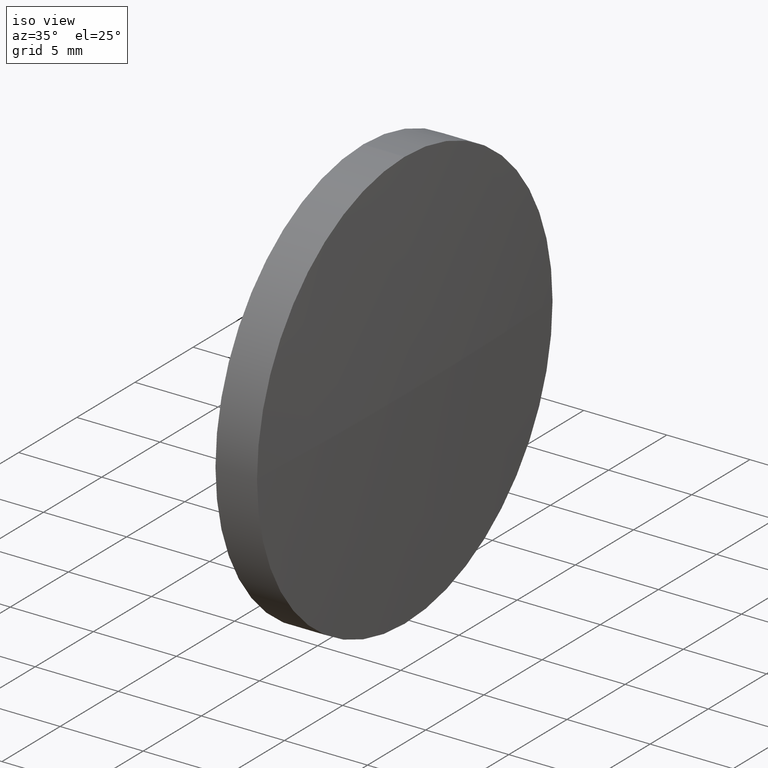
[diagram: clean part render]
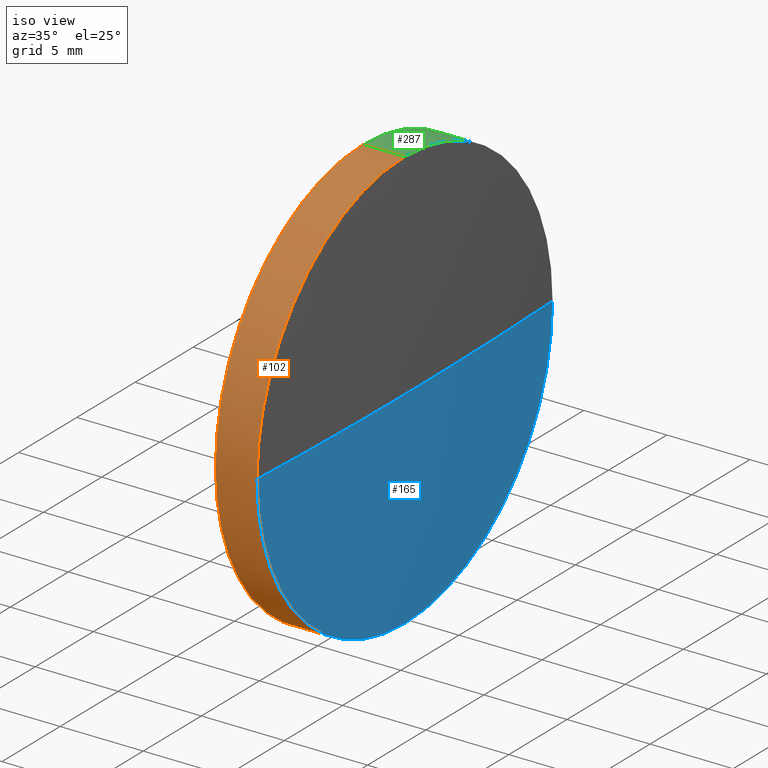
[diagram: same view with three faces highlighted in distinct colors, each labeled with its STEP entity id]
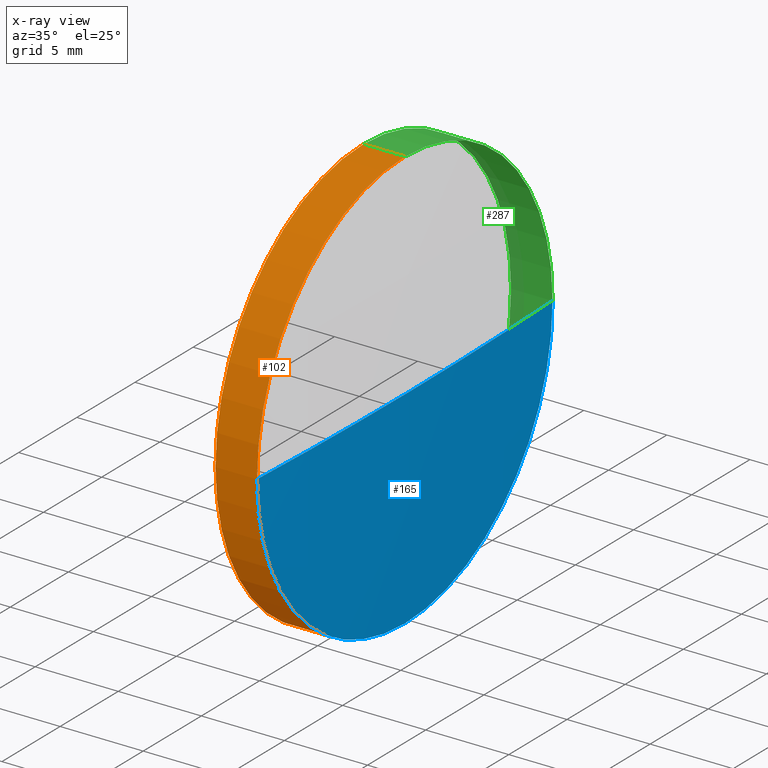
[diagram: x-ray of the same camera — body ghosted, the three highlighted faces saturated]
A machine part, iso view with three faces highlighted in distinct colors.
The next image is the same camera in x-ray (body ghosted, the three faces saturated) — at least one of them is partly hidden behind the body in this view.
Their STEP definitions:

[orange] entity #102 — the highlighted cylindrical surface (partial cylindrical patch) has radius 12.7 mm, axis along (-1, -0, -0).
#7 = VERTEX_POINT ( 'NONE', #86 ) ;
#10 = CARTESIAN_POINT ( 'NONE',  ( 85.20819446037681600, 48.61611302318478100, 0.0000000000000000000 ) ) ;
#17 = ORIENTED_EDGE ( 'NONE', *, *, #55, .T. ) ;
#25 = EDGE_CURVE ( 'NONE', #301, #7, #75, .T. ) ;
#31 = CARTESIAN_POINT ( 'NONE',  ( 85.20819446037681600, 48.61611302318478100, 0.0000000000000000000 ) ) ;
#41 = CIRCLE ( 'NONE', #137, 12.69999999999999600 ) ;
#42 = EDGE_CURVE ( 'NONE', #7, #178, #262, .T. ) ;
#46 = EDGE_CURVE ( 'NONE', #306, #162, #286, .T. ) ;
#52 = EDGE_LOOP ( 'NONE', ( #175, #17, #184, #226, #79, #318 ) ) ;
#54 = DIRECTION ( 'NONE',  ( 0.0000000000000000000, 0.0000000000000000000, 1.000000000000000000 ) ) ;
#55 = EDGE_CURVE ( 'NONE', #301, #235, #108, .T. ) ;
#71 = CARTESIAN_POINT ( 'NONE',  ( 87.70819308894824900, 48.61611302318478100, -12.69999999999999600 ) ) ;
#75 = LINE ( 'NONE', #88, #187 ) ;
#79 = ORIENTED_EDGE ( 'NONE', *, *, #92, .F. ) ;
#81 = DIRECTION ( 'NONE',  ( -1.000000000000000000, -0.0000000000000000000, -0.0000000000000000000 ) ) ;
#86 = CARTESIAN_POINT ( 'NONE',  ( 85.20819446037681600, 48.61611302318478100, -12.69999999999999600 ) ) ;
#88 = CARTESIAN_POINT ( 'NONE',  ( 83.37198105152673100, 48.61611302318478100, -12.69999999999999600 ) ) ;
#89 = CYLINDRICAL_SURFACE ( 'NONE', #211, 12.69999999999999600 ) ;
#92 = EDGE_CURVE ( 'NONE', #178, #162, #41, .T. ) ;
#102 = ADVANCED_FACE ( 'NONE', ( #121 ), #89, .T. ) ;
#108 = CIRCLE ( 'NONE', #311, 12.69999999999999600 ) ;
#115 = CARTESIAN_POINT ( 'NONE',  ( 87.70819308894824900, 48.61611302318478100, 0.0000000000000000000 ) ) ;
#121 = FACE_OUTER_BOUND ( 'NONE', #52, .T. ) ;
#127 = CARTESIAN_POINT ( 'NONE',  ( 87.70819308894824900, 48.61611302318478100, 12.69999999999999600 ) ) ;
#137 = AXIS2_PLACEMENT_3D ( 'NONE', #31, #224, #310 ) ;
#162 = VERTEX_POINT ( 'NONE', #289 ) ;
#168 = CARTESIAN_POINT ( 'NONE',  ( 83.37198105152673100, 48.61611302318478100, 0.0000000000000000000 ) ) ;
#174 = DIRECTION ( 'NONE',  ( -1.000000000000000000, -0.0000000000000000000, -0.0000000000000000000 ) ) ;
#175 = ORIENTED_EDGE ( 'NONE', *, *, #25, .F. ) ;
#176 = EDGE_CURVE ( 'NONE', #235, #306, #315, .T. ) ;
#178 = VERTEX_POINT ( 'NONE', #204 ) ;
#184 = ORIENTED_EDGE ( 'NONE', *, *, #176, .T. ) ;
#187 = VECTOR ( 'NONE', #284, 1000.000000000000000 ) ;
#196 = AXIS2_PLACEMENT_3D ( 'NONE', #115, #174, #342 ) ;
#199 = DIRECTION ( 'NONE',  ( 0.0000000000000000000, 0.0000000000000000000, 1.000000000000000000 ) ) ;
#204 = CARTESIAN_POINT ( 'NONE',  ( 85.20819446037680200, 35.91611302318423100, -1.555301434917111200E-015 ) ) ;
#211 = AXIS2_PLACEMENT_3D ( 'NONE', #168, #252, #332 ) ;
#224 = DIRECTION ( 'NONE',  ( -1.000000000000000000, -0.0000000000000000000, -0.0000000000000000000 ) ) ;
#226 = ORIENTED_EDGE ( 'NONE', *, *, #46, .T. ) ;
#235 = VERTEX_POINT ( 'NONE', #261 ) ;
#252 = DIRECTION ( 'NONE',  ( -1.000000000000000000, -0.0000000000000000000, -0.0000000000000000000 ) ) ;
#261 = CARTESIAN_POINT ( 'NONE',  ( 87.70819308894824900, 35.91611302318488400, -1.555301434917123000E-015 ) ) ;
#262 = CIRCLE ( 'NONE', #314, 12.69999999999999600 ) ;
#281 = DIRECTION ( 'NONE',  ( -1.000000000000000000, -0.0000000000000000000, -0.0000000000000000000 ) ) ;
#283 = CARTESIAN_POINT ( 'NONE',  ( 83.37198105152673100, 48.61611302318478100, 12.69999999999999600 ) ) ;
#284 = DIRECTION ( 'NONE',  ( -1.000000000000000000, -0.0000000000000000000, -0.0000000000000000000 ) ) ;
#285 = CARTESIAN_POINT ( 'NONE',  ( 87.70819308894824900, 48.61611302318478100, 0.0000000000000000000 ) ) ;
#286 = LINE ( 'NONE', #283, #343 ) ;
#289 = CARTESIAN_POINT ( 'NONE',  ( 85.20819446037681600, 48.61611302318478100, 12.69999999999999600 ) ) ;
#301 = VERTEX_POINT ( 'NONE', #71 ) ;
#304 = DIRECTION ( 'NONE',  ( -1.000000000000000000, -0.0000000000000000000, -0.0000000000000000000 ) ) ;
#306 = VERTEX_POINT ( 'NONE', #127 ) ;
#310 = DIRECTION ( 'NONE',  ( 0.0000000000000000000, 0.0000000000000000000, 1.000000000000000000 ) ) ;
#311 = AXIS2_PLACEMENT_3D ( 'NONE', #285, #281, #199 ) ;
#314 = AXIS2_PLACEMENT_3D ( 'NONE', #10, #304, #54 ) ;
#315 = CIRCLE ( 'NONE', #196, 12.69999999999999600 ) ;
#318 = ORIENTED_EDGE ( 'NONE', *, *, #42, .F. ) ;
#332 = DIRECTION ( 'NONE',  ( 0.0000000000000000000, 0.0000000000000000000, 1.000000000000000000 ) ) ;
#342 = DIRECTION ( 'NONE',  ( 0.0000000000000000000, 0.0000000000000000000, 1.000000000000000000 ) ) ;
#343 = VECTOR ( 'NONE', #81, 1000.000000000000000 ) ;

[blue] entity #165 — the highlighted spherical surface has radius 273.559 mm.
#6 = EDGE_CURVE ( 'NONE', #74, #83, #142, .T. ) ;
#12 = DIRECTION ( 'NONE',  ( -0.0000000000000000000, 0.0000000000000000000, 1.000000000000000000 ) ) ;
#33 = DIRECTION ( 'NONE',  ( -1.000000000000000000, -0.0000000000000000000, -0.0000000000000000000 ) ) ;
#55 = EDGE_CURVE ( 'NONE', #301, #235, #108, .T. ) ;
#56 = DIRECTION ( 'NONE',  ( 0.0000000000000000000, 0.0000000000000000000, 1.000000000000000000 ) ) ;
#59 = CARTESIAN_POINT ( 'NONE',  ( -185.5556735932195200, 48.61611302318475200, 0.0000000000000000000 ) ) ;
#64 = CARTESIAN_POINT ( 'NONE',  ( -185.5556735932195200, 48.61611302318475200, 0.0000000000000000000 ) ) ;
#71 = CARTESIAN_POINT ( 'NONE',  ( 87.70819308894824900, 48.61611302318478100, -12.69999999999999600 ) ) ;
#74 = VERTEX_POINT ( 'NONE', #164 ) ;
#83 = VERTEX_POINT ( 'NONE', #140 ) ;
#90 = EDGE_LOOP ( 'NONE', ( #154, #219, #133, #278 ) ) ;
#94 = SPHERICAL_SURFACE ( 'NONE', #218, 273.5588251804163100 ) ;
#104 = CIRCLE ( 'NONE', #229, 273.5588251804163100 ) ;
#108 = CIRCLE ( 'NONE', #311, 12.69999999999999600 ) ;
#113 = CIRCLE ( 'NONE', #151, 12.69999999999999600 ) ;
#132 = EDGE_CURVE ( 'NONE', #83, #301, #113, .T. ) ;
#133 = ORIENTED_EDGE ( 'NONE', *, *, #55, .F. ) ;
#139 = EDGE_CURVE ( 'NONE', #74, #235, #104, .T. ) ;
#140 = CARTESIAN_POINT ( 'NONE',  ( 87.70819308894824900, 61.31611302318465600, 0.0000000000000000000 ) ) ;
#142 = CIRCLE ( 'NONE', #294, 273.5588251804163100 ) ;
#143 = CARTESIAN_POINT ( 'NONE',  ( 87.70819308894824900, 48.61611302318478100, 0.0000000000000000000 ) ) ;
#151 = AXIS2_PLACEMENT_3D ( 'NONE', #143, #33, #56 ) ;
#154 = ORIENTED_EDGE ( 'NONE', *, *, #6, .F. ) ;
#164 = CARTESIAN_POINT ( 'NONE',  ( 88.00315158719676800, 48.61611302318476600, 0.0000000000000000000 ) ) ;
#165 = ADVANCED_FACE ( 'NONE', ( #173 ), #94, .T. ) ;
#172 = CARTESIAN_POINT ( 'NONE',  ( -185.5556735932195200, 48.61611302318475200, 0.0000000000000000000 ) ) ;
#173 = FACE_OUTER_BOUND ( 'NONE', #90, .T. ) ;
#199 = DIRECTION ( 'NONE',  ( 0.0000000000000000000, 0.0000000000000000000, 1.000000000000000000 ) ) ;
#200 = DIRECTION ( 'NONE',  ( 1.000000000000000000, 0.0000000000000000000, 0.0000000000000000000 ) ) ;
#218 = AXIS2_PLACEMENT_3D ( 'NONE', #64, #228, #290 ) ;
#219 = ORIENTED_EDGE ( 'NONE', *, *, #139, .T. ) ;
#228 = DIRECTION ( 'NONE',  ( -0.0000000000000000000, 0.0000000000000000000, -1.000000000000000000 ) ) ;
#229 = AXIS2_PLACEMENT_3D ( 'NONE', #172, #231, #316 ) ;
#231 = DIRECTION ( 'NONE',  ( 0.0000000000000000000, 1.224646799147353200E-016, -1.000000000000000000 ) ) ;
#235 = VERTEX_POINT ( 'NONE', #261 ) ;
#261 = CARTESIAN_POINT ( 'NONE',  ( 87.70819308894824900, 35.91611302318488400, -1.555301434917123000E-015 ) ) ;
#278 = ORIENTED_EDGE ( 'NONE', *, *, #132, .F. ) ;
#281 = DIRECTION ( 'NONE',  ( -1.000000000000000000, -0.0000000000000000000, -0.0000000000000000000 ) ) ;
#285 = CARTESIAN_POINT ( 'NONE',  ( 87.70819308894824900, 48.61611302318478100, 0.0000000000000000000 ) ) ;
#290 = DIRECTION ( 'NONE',  ( 0.0000000000000000000, 1.000000000000000000, 0.0000000000000000000 ) ) ;
#294 = AXIS2_PLACEMENT_3D ( 'NONE', #59, #12, #200 ) ;
#301 = VERTEX_POINT ( 'NONE', #71 ) ;
#311 = AXIS2_PLACEMENT_3D ( 'NONE', #285, #281, #199 ) ;
#316 = DIRECTION ( 'NONE',  ( 0.0000000000000000000, 1.000000000000000000, 1.224646799147353200E-016 ) ) ;

[green] entity #287 — the highlighted cylindrical surface (partial cylindrical patch) has radius 12.7 mm, axis along (-1, -0, -0).
#1 = CARTESIAN_POINT ( 'NONE',  ( 83.37198105152673100, 48.61611302318478100, 0.0000000000000000000 ) ) ;
#7 = VERTEX_POINT ( 'NONE', #86 ) ;
#9 = ORIENTED_EDGE ( 'NONE', *, *, #302, .F. ) ;
#15 = EDGE_CURVE ( 'NONE', #249, #7, #320, .T. ) ;
#25 = EDGE_CURVE ( 'NONE', #301, #7, #75, .T. ) ;
#33 = DIRECTION ( 'NONE',  ( -1.000000000000000000, -0.0000000000000000000, -0.0000000000000000000 ) ) ;
#46 = EDGE_CURVE ( 'NONE', #306, #162, #286, .T. ) ;
#56 = DIRECTION ( 'NONE',  ( 0.0000000000000000000, 0.0000000000000000000, 1.000000000000000000 ) ) ;
#71 = CARTESIAN_POINT ( 'NONE',  ( 87.70819308894824900, 48.61611302318478100, -12.69999999999999600 ) ) ;
#75 = LINE ( 'NONE', #88, #187 ) ;
#81 = DIRECTION ( 'NONE',  ( -1.000000000000000000, -0.0000000000000000000, -0.0000000000000000000 ) ) ;
#83 = VERTEX_POINT ( 'NONE', #140 ) ;
#86 = CARTESIAN_POINT ( 'NONE',  ( 85.20819446037681600, 48.61611302318478100, -12.69999999999999600 ) ) ;
#87 = CARTESIAN_POINT ( 'NONE',  ( 87.70819308894824900, 48.61611302318478100, 0.0000000000000000000 ) ) ;
#88 = CARTESIAN_POINT ( 'NONE',  ( 83.37198105152673100, 48.61611302318478100, -12.69999999999999600 ) ) ;
#93 = ORIENTED_EDGE ( 'NONE', *, *, #25, .T. ) ;
#103 = CYLINDRICAL_SURFACE ( 'NONE', #329, 12.69999999999999600 ) ;
#106 = ORIENTED_EDGE ( 'NONE', *, *, #46, .F. ) ;
#113 = CIRCLE ( 'NONE', #151, 12.69999999999999600 ) ;
#120 = CIRCLE ( 'NONE', #280, 12.69999999999999600 ) ;
#127 = CARTESIAN_POINT ( 'NONE',  ( 87.70819308894824900, 48.61611302318478100, 12.69999999999999600 ) ) ;
#132 = EDGE_CURVE ( 'NONE', #83, #301, #113, .T. ) ;
#140 = CARTESIAN_POINT ( 'NONE',  ( 87.70819308894824900, 61.31611302318465600, 0.0000000000000000000 ) ) ;
#143 = CARTESIAN_POINT ( 'NONE',  ( 87.70819308894824900, 48.61611302318478100, 0.0000000000000000000 ) ) ;
#148 = DIRECTION ( 'NONE',  ( -1.000000000000000000, -0.0000000000000000000, -0.0000000000000000000 ) ) ;
#151 = AXIS2_PLACEMENT_3D ( 'NONE', #143, #33, #56 ) ;
#152 = DIRECTION ( 'NONE',  ( -1.000000000000000000, -0.0000000000000000000, -0.0000000000000000000 ) ) ;
#153 = EDGE_CURVE ( 'NONE', #306, #83, #336, .T. ) ;
#162 = VERTEX_POINT ( 'NONE', #289 ) ;
#170 = DIRECTION ( 'NONE',  ( -1.000000000000000000, -0.0000000000000000000, -0.0000000000000000000 ) ) ;
#187 = VECTOR ( 'NONE', #284, 1000.000000000000000 ) ;
#195 = AXIS2_PLACEMENT_3D ( 'NONE', #308, #170, #254 ) ;
#208 = ORIENTED_EDGE ( 'NONE', *, *, #15, .F. ) ;
#210 = CARTESIAN_POINT ( 'NONE',  ( 85.20819446037681600, 48.61611302318478100, 0.0000000000000000000 ) ) ;
#215 = DIRECTION ( 'NONE',  ( 0.0000000000000000000, 0.0000000000000000000, 1.000000000000000000 ) ) ;
#239 = DIRECTION ( 'NONE',  ( -1.000000000000000000, -0.0000000000000000000, -0.0000000000000000000 ) ) ;
#240 = DIRECTION ( 'NONE',  ( 0.0000000000000000000, 0.0000000000000000000, 1.000000000000000000 ) ) ;
#249 = VERTEX_POINT ( 'NONE', #339 ) ;
#254 = DIRECTION ( 'NONE',  ( 0.0000000000000000000, 0.0000000000000000000, 1.000000000000000000 ) ) ;
#277 = FACE_OUTER_BOUND ( 'NONE', #340, .T. ) ;
#280 = AXIS2_PLACEMENT_3D ( 'NONE', #210, #239, #215 ) ;
#283 = CARTESIAN_POINT ( 'NONE',  ( 83.37198105152673100, 48.61611302318478100, 12.69999999999999600 ) ) ;
#284 = DIRECTION ( 'NONE',  ( -1.000000000000000000, -0.0000000000000000000, -0.0000000000000000000 ) ) ;
#286 = LINE ( 'NONE', #283, #343 ) ;
#287 = ADVANCED_FACE ( 'NONE', ( #277 ), #103, .T. ) ;
#289 = CARTESIAN_POINT ( 'NONE',  ( 85.20819446037681600, 48.61611302318478100, 12.69999999999999600 ) ) ;
#301 = VERTEX_POINT ( 'NONE', #71 ) ;
#302 = EDGE_CURVE ( 'NONE', #162, #249, #120, .T. ) ;
#306 = VERTEX_POINT ( 'NONE', #127 ) ;
#308 = CARTESIAN_POINT ( 'NONE',  ( 85.20819446037681600, 48.61611302318478100, 0.0000000000000000000 ) ) ;
#313 = DIRECTION ( 'NONE',  ( 0.0000000000000000000, 0.0000000000000000000, 1.000000000000000000 ) ) ;
#320 = CIRCLE ( 'NONE', #195, 12.69999999999999600 ) ;
#322 = AXIS2_PLACEMENT_3D ( 'NONE', #87, #148, #313 ) ;
#329 = AXIS2_PLACEMENT_3D ( 'NONE', #1, #152, #240 ) ;
#331 = ORIENTED_EDGE ( 'NONE', *, *, #132, .T. ) ;
#336 = CIRCLE ( 'NONE', #322, 12.69999999999999600 ) ;
#339 = CARTESIAN_POINT ( 'NONE',  ( 85.20819446037680200, 61.31611302318455600, 0.0000000000000000000 ) ) ;
#340 = EDGE_LOOP ( 'NONE', ( #331, #93, #208, #9, #106, #345 ) ) ;
#343 = VECTOR ( 'NONE', #81, 1000.000000000000000 ) ;
#345 = ORIENTED_EDGE ( 'NONE', *, *, #153, .T. ) ;